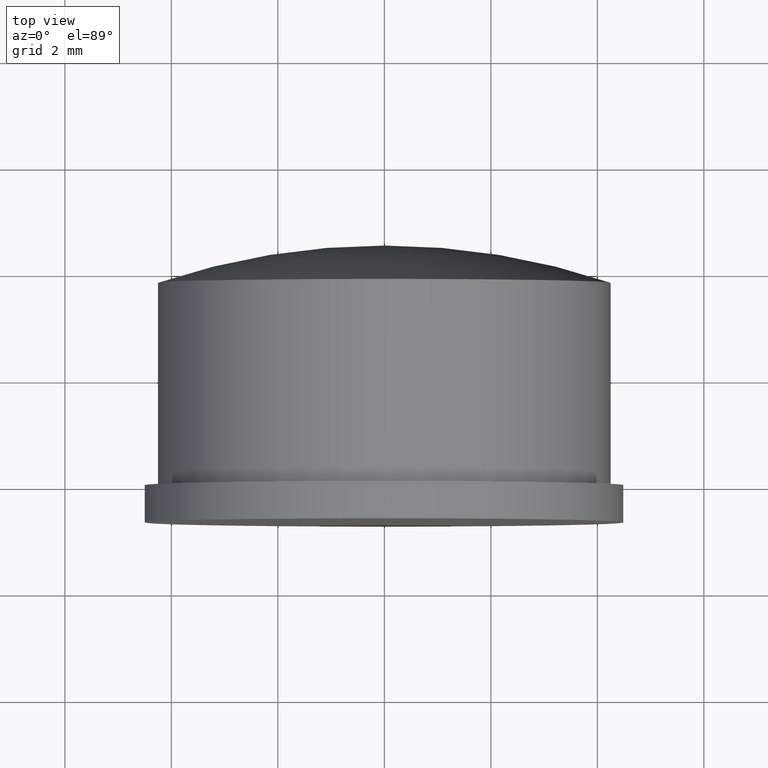
[diagram: clean part render]
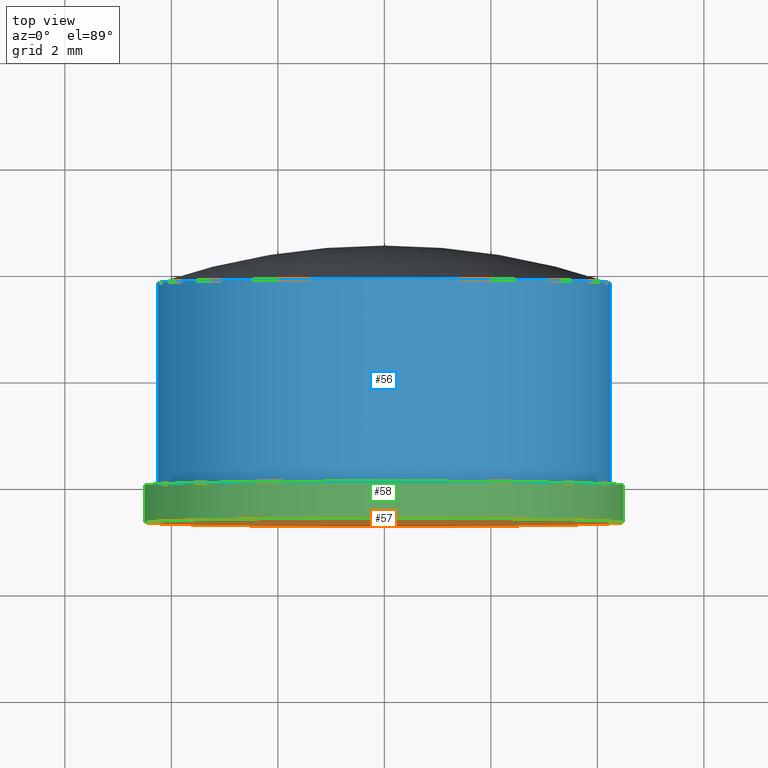
[diagram: same view with three faces highlighted in distinct colors, each labeled with its STEP entity id]
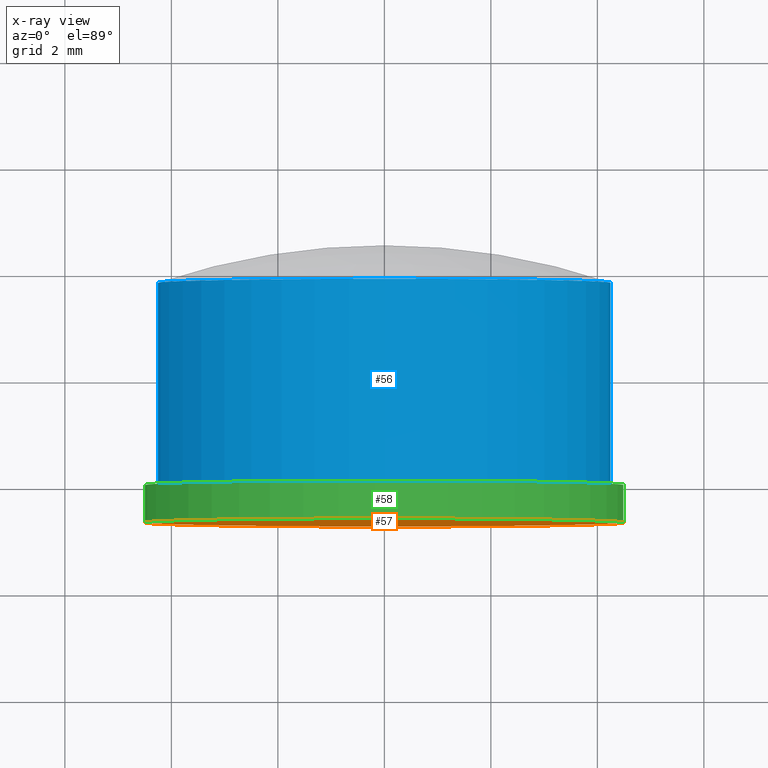
[diagram: x-ray of the same camera — body ghosted, the three highlighted faces saturated]
A machine part, top view with three faces highlighted in distinct colors.
The next image is the same camera in x-ray (body ghosted, the three faces saturated) — at least one of them is partly hidden behind the body in this view.
Their STEP definitions:

[orange] entity #57 — the highlighted planar face has unit normal (0, -1, 0).
#16=PLANE('',#66);
#22=FACE_OUTER_BOUND('',#28,.T.);
#28=EDGE_LOOP('',(#48));
#36=CIRCLE('',#67,4.5);
#40=VERTEX_POINT('',#99);
#44=EDGE_CURVE('',#40,#40,#36,.T.);
#48=ORIENTED_EDGE('',*,*,#44,.F.);
#57=ADVANCED_FACE('',(#22),#16,.T.);
#66=AXIS2_PLACEMENT_3D('',#98,#80,#81);
#67=AXIS2_PLACEMENT_3D('',#100,#82,#83);
#80=DIRECTION('center_axis',(2.94285525206709E-17,-1.,0.));
#81=DIRECTION('ref_axis',(0.,0.,-1.));
#82=DIRECTION('center_axis',(-2.94285525206709E-17,1.,0.));
#83=DIRECTION('ref_axis',(-1.,-3.26512559569265E-17,0.));
#98=CARTESIAN_POINT('Origin',(-2.25,-0.7,0.));
#99=CARTESIAN_POINT('',(-4.5,-0.7,0.));
#100=CARTESIAN_POINT('Origin',(-3.85185988877447E-33,-0.7,0.));

[blue] entity #56 — the highlighted cylindrical surface (bore or boss wall) has radius 4.25 mm, axis along (-0, 1, 0).
#18=FACE_BOUND('',#27,.T.);
#21=FACE_OUTER_BOUND('',#26,.T.);
#26=EDGE_LOOP('',(#46));
#27=EDGE_LOOP('',(#47));
#34=CIRCLE('',#64,4.25);
#35=CIRCLE('',#65,4.25);
#38=VERTEX_POINT('',#94);
#39=VERTEX_POINT('',#96);
#42=EDGE_CURVE('',#38,#38,#34,.T.);
#43=EDGE_CURVE('',#39,#39,#35,.T.);
#46=ORIENTED_EDGE('',*,*,#42,.F.);
#47=ORIENTED_EDGE('',*,*,#43,.T.);
#54=CYLINDRICAL_SURFACE('',#63,4.25);
#56=ADVANCED_FACE('',(#21,#18),#54,.T.);
#63=AXIS2_PLACEMENT_3D('',#93,#74,#75);
#64=AXIS2_PLACEMENT_3D('',#95,#76,#77);
#65=AXIS2_PLACEMENT_3D('',#97,#78,#79);
#74=DIRECTION('center_axis',(-2.94285525206709E-17,1.,0.));
#75=DIRECTION('ref_axis',(-1.,-3.26512559569265E-17,0.));
#76=DIRECTION('center_axis',(-2.94285525206709E-17,1.,0.));
#77=DIRECTION('ref_axis',(-1.,0.,0.));
#78=DIRECTION('center_axis',(-2.94285525206709E-17,1.,0.));
#79=DIRECTION('ref_axis',(-1.,-3.26512559569265E-17,0.));
#93=CARTESIAN_POINT('Origin',(-7.65142365537444E-17,1.9,0.));
#94=CARTESIAN_POINT('',(-4.25,3.8,0.));
#95=CARTESIAN_POINT('Origin',(-1.32428486343019E-16,3.8,0.));
#96=CARTESIAN_POINT('',(-4.25,0.,0.));
#97=CARTESIAN_POINT('Origin',(-2.05999867644696E-17,1.25071348212851E-16,
0.));

[green] entity #58 — the highlighted cylindrical surface (bore or boss wall) has radius 4.5 mm, axis along (-0, 1, 0).
#19=FACE_BOUND('',#30,.T.);
#23=FACE_OUTER_BOUND('',#29,.T.);
#29=EDGE_LOOP('',(#49));
#30=EDGE_LOOP('',(#50));
#36=CIRCLE('',#67,4.5);
#37=CIRCLE('',#69,4.5);
#40=VERTEX_POINT('',#99);
#41=VERTEX_POINT('',#102);
#44=EDGE_CURVE('',#40,#40,#36,.T.);
#45=EDGE_CURVE('',#41,#41,#37,.T.);
#49=ORIENTED_EDGE('',*,*,#45,.F.);
#50=ORIENTED_EDGE('',*,*,#44,.T.);
#55=CYLINDRICAL_SURFACE('',#68,4.5);
#58=ADVANCED_FACE('',(#23,#19),#55,.T.);
#67=AXIS2_PLACEMENT_3D('',#100,#82,#83);
#68=AXIS2_PLACEMENT_3D('',#101,#84,#85);
#69=AXIS2_PLACEMENT_3D('',#103,#86,#87);
#82=DIRECTION('center_axis',(-2.94285525206709E-17,1.,0.));
#83=DIRECTION('ref_axis',(-1.,-3.26512559569265E-17,0.));
#84=DIRECTION('center_axis',(-2.94285525206709E-17,1.,0.));
#85=DIRECTION('ref_axis',(-1.,-3.26512559569265E-17,0.));
#86=DIRECTION('center_axis',(-2.94285525206709E-17,1.,0.));
#87=DIRECTION('ref_axis',(-1.,-3.26512559569265E-17,0.));
#99=CARTESIAN_POINT('',(-4.5,-0.7,0.));
#100=CARTESIAN_POINT('Origin',(-3.85185988877447E-33,-0.7,0.));
#101=CARTESIAN_POINT('Origin',(-1.02999933822348E-17,-0.35,0.));
#102=CARTESIAN_POINT('',(-4.5,0.,0.));
#103=CARTESIAN_POINT('Origin',(-2.05999867644696E-17,1.32428486343019E-16,
0.));